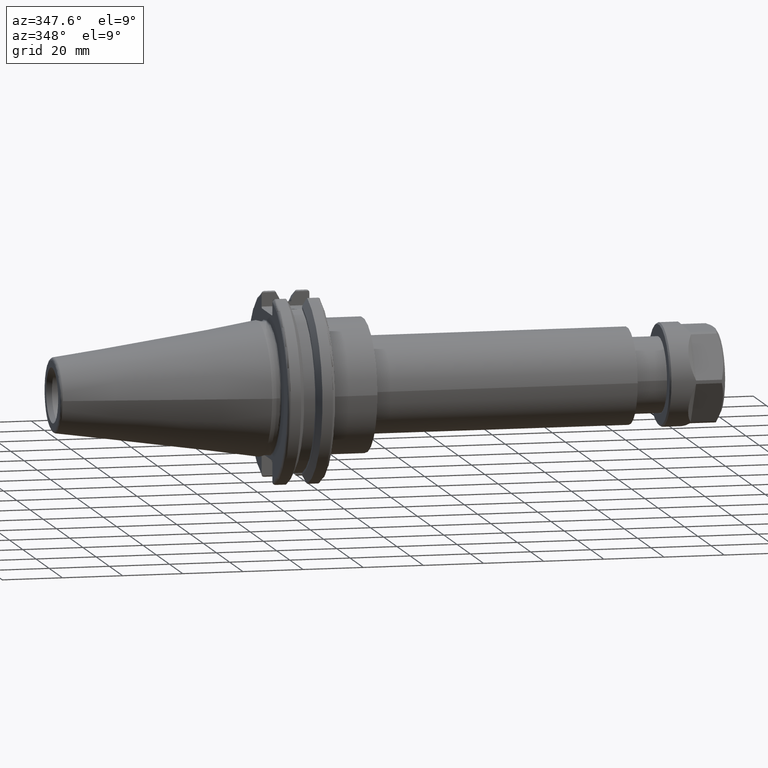
[diagram: clean part render]
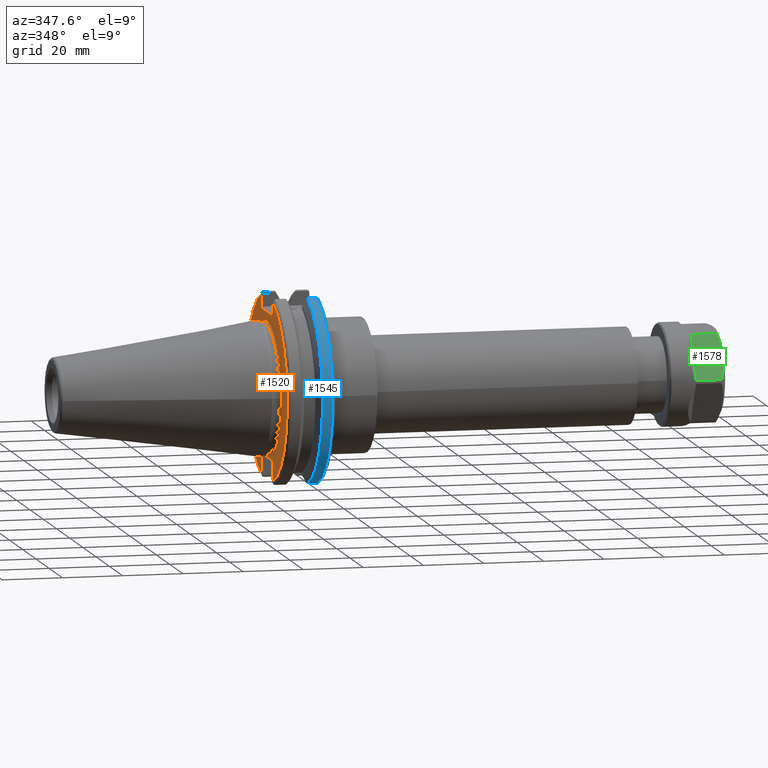
[diagram: same view with three faces highlighted in distinct colors, each labeled with its STEP entity id]
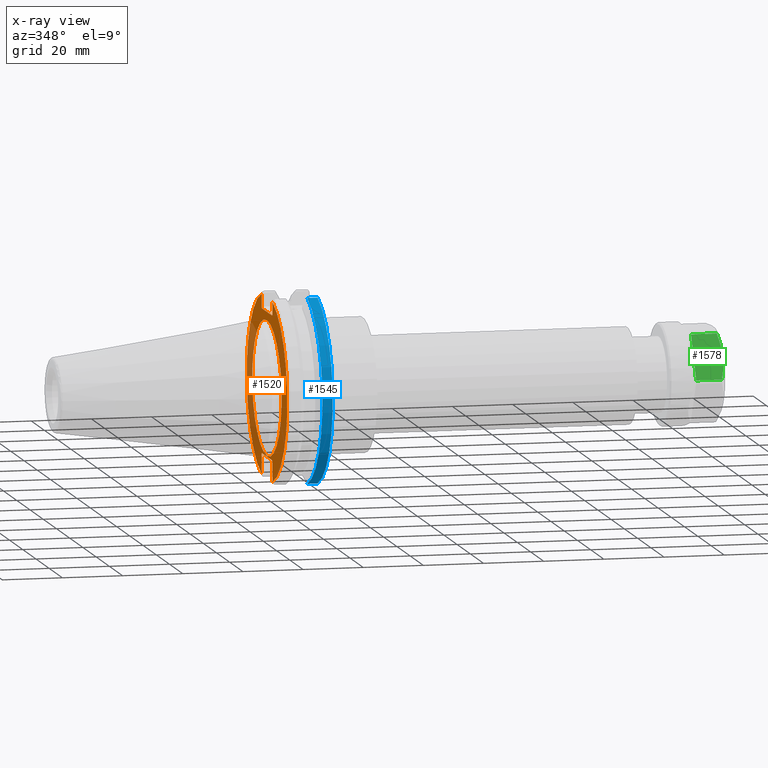
[diagram: x-ray of the same camera — body ghosted, the three highlighted faces saturated]
A machine part, auxiliary view with three faces highlighted in distinct colors.
The next image is the same camera in x-ray (body ghosted, the three faces saturated) — at least one of them is partly hidden behind the body in this view.
Their STEP definitions:

[orange] entity #1520 — the highlighted planar face has unit normal (-1, 0, 0).
#118=FACE_BOUND('',#304,.T.);
#134=PLANE('',#1706);
#207=FACE_OUTER_BOUND('',#303,.T.);
#303=EDGE_LOOP('',(#1091,#1092,#1093,#1094,#1095,#1096,#1097,#1098,#1099,
#1100,#1101,#1102));
#304=EDGE_LOOP('',(#1103));
#402=LINE('',#2381,#502);
#403=LINE('',#2383,#503);
#404=LINE('',#2385,#504);
#405=LINE('',#2387,#505);
#406=LINE('',#2389,#506);
#407=LINE('',#2393,#507);
#408=LINE('',#2395,#508);
#409=LINE('',#2397,#509);
#410=LINE('',#2399,#510);
#411=LINE('',#2400,#511);
#502=VECTOR('',#1935,10.);
#503=VECTOR('',#1936,10.);
#504=VECTOR('',#1937,10.);
#505=VECTOR('',#1938,10.);
#506=VECTOR('',#1939,10.);
#507=VECTOR('',#1942,10.);
#508=VECTOR('',#1943,10.);
#509=VECTOR('',#1944,10.);
#510=VECTOR('',#1945,10.);
#511=VECTOR('',#1946,10.);
#610=CIRCLE('',#1704,22.3);
#612=CIRCLE('',#1707,30.75);
#613=CIRCLE('',#1708,30.75);
#687=VERTEX_POINT('',#2372);
#688=VERTEX_POINT('',#2377);
#689=VERTEX_POINT('',#2378);
#690=VERTEX_POINT('',#2380);
#691=VERTEX_POINT('',#2382);
#692=VERTEX_POINT('',#2384);
#693=VERTEX_POINT('',#2386);
#694=VERTEX_POINT('',#2388);
#695=VERTEX_POINT('',#2390);
#696=VERTEX_POINT('',#2392);
#697=VERTEX_POINT('',#2394);
#698=VERTEX_POINT('',#2396);
#699=VERTEX_POINT('',#2398);
#843=EDGE_CURVE('',#687,#687,#610,.T.);
#845=EDGE_CURVE('',#688,#689,#612,.T.);
#846=EDGE_CURVE('',#688,#690,#402,.T.);
#847=EDGE_CURVE('',#691,#690,#403,.T.);
#848=EDGE_CURVE('',#691,#692,#404,.T.);
#849=EDGE_CURVE('',#693,#692,#405,.T.);
#850=EDGE_CURVE('',#693,#694,#406,.T.);
#851=EDGE_CURVE('',#695,#694,#613,.T.);
#852=EDGE_CURVE('',#695,#696,#407,.T.);
#853=EDGE_CURVE('',#697,#696,#408,.T.);
#854=EDGE_CURVE('',#697,#698,#409,.T.);
#855=EDGE_CURVE('',#699,#698,#410,.T.);
#856=EDGE_CURVE('',#699,#689,#411,.T.);
#1091=ORIENTED_EDGE('',*,*,#845,.F.);
#1092=ORIENTED_EDGE('',*,*,#846,.T.);
#1093=ORIENTED_EDGE('',*,*,#847,.F.);
#1094=ORIENTED_EDGE('',*,*,#848,.T.);
#1095=ORIENTED_EDGE('',*,*,#849,.F.);
#1096=ORIENTED_EDGE('',*,*,#850,.T.);
#1097=ORIENTED_EDGE('',*,*,#851,.F.);
#1098=ORIENTED_EDGE('',*,*,#852,.T.);
#1099=ORIENTED_EDGE('',*,*,#853,.F.);
#1100=ORIENTED_EDGE('',*,*,#854,.T.);
#1101=ORIENTED_EDGE('',*,*,#855,.F.);
#1102=ORIENTED_EDGE('',*,*,#856,.T.);
#1103=ORIENTED_EDGE('',*,*,#843,.F.);
#1520=ADVANCED_FACE('',(#207,#118),#134,.T.);
#1704=AXIS2_PLACEMENT_3D('',#2374,#1927,#1928);
#1706=AXIS2_PLACEMENT_3D('',#2376,#1931,#1932);
#1707=AXIS2_PLACEMENT_3D('',#2379,#1933,#1934);
#1708=AXIS2_PLACEMENT_3D('',#2391,#1940,#1941);
#1927=DIRECTION('center_axis',(-1.,0.,0.));
#1928=DIRECTION('ref_axis',(0.,-1.,1.83697019872103E-16));
#1931=DIRECTION('center_axis',(-1.,0.,0.));
#1932=DIRECTION('ref_axis',(0.,0.,1.));
#1933=DIRECTION('center_axis',(1.,0.,0.));
#1934=DIRECTION('ref_axis',(0.,-1.,1.60812264967664E-16));
#1935=DIRECTION('',(0.,0.,-1.));
#1936=DIRECTION('',(0.,-0.70710678118655,0.707106781186545));
#1937=DIRECTION('',(0.,1.,0.));
#1938=DIRECTION('',(0.,-0.707106781186549,-0.707106781186546));
#1939=DIRECTION('',(0.,0.,1.));
#1940=DIRECTION('center_axis',(1.,0.,0.));
#1941=DIRECTION('ref_axis',(0.,1.,1.60812264967664E-16));
#1942=DIRECTION('',(0.,0.,1.));
#1943=DIRECTION('',(0.,0.707106781186549,-0.707106781186546));
#1944=DIRECTION('',(0.,-1.,0.));
#1945=DIRECTION('',(0.,0.707106781186549,0.707106781186546));
#1946=DIRECTION('',(0.,0.,-1.));
#2372=CARTESIAN_POINT('',(3.175,-2.7309623620986E-15,22.3));
#2374=CARTESIAN_POINT('Origin',(3.175,0.,0.));
#2376=CARTESIAN_POINT('Origin',(3.175,31.75,0.));
#2377=CARTESIAN_POINT('',(3.175,-8.18999999999999,29.6392712461019));
#2378=CARTESIAN_POINT('',(3.175,-8.19,-29.6392712461019));
#2379=CARTESIAN_POINT('Origin',(3.175,0.,0.));
#2380=CARTESIAN_POINT('',(3.175,-8.18999999999999,25.5));
#2381=CARTESIAN_POINT('',(3.175,-8.18999999999999,12.5));
#2382=CARTESIAN_POINT('',(3.175,-7.68999999999999,25.));
#2383=CARTESIAN_POINT('',(3.175,8.29500000000007,9.01500000000004));
#2384=CARTESIAN_POINT('',(3.175,7.69,25.));
#2385=CARTESIAN_POINT('',(3.175,15.875,25.));
#2386=CARTESIAN_POINT('',(3.175,8.19,25.5));
#2387=CARTESIAN_POINT('',(3.175,7.58000000000002,24.89));
#2388=CARTESIAN_POINT('',(3.175,8.19,29.6392712461019));
#2389=CARTESIAN_POINT('',(3.175,8.19,12.5));
#2390=CARTESIAN_POINT('',(3.175,8.18999999999999,-29.6392712461019));
#2391=CARTESIAN_POINT('Origin',(3.175,0.,0.));
#2392=CARTESIAN_POINT('',(3.175,8.18999999999999,-23.1));
#2393=CARTESIAN_POINT('',(3.175,8.18999999999999,-11.3));
#2394=CARTESIAN_POINT('',(3.175,7.69,-22.6));
#2395=CARTESIAN_POINT('',(3.175,8.18000000000002,-23.09));
#2396=CARTESIAN_POINT('',(3.175,-7.69,-22.6));
#2397=CARTESIAN_POINT('',(3.175,15.875,-22.6));
#2398=CARTESIAN_POINT('',(3.175,-8.19,-23.1));
#2399=CARTESIAN_POINT('',(3.175,7.69500000000004,-7.21500000000002));
#2400=CARTESIAN_POINT('',(3.175,-8.19,-11.3));

[blue] entity #1545 — the highlighted cylindrical surface (partial cylindrical patch) has radius 31.75 mm, axis along (1, 0, 0).
#232=FACE_OUTER_BOUND('',#331,.T.);
#331=EDGE_LOOP('',(#1250,#1251,#1252,#1253));
#456=LINE('',#2694,#556);
#457=LINE('',#2700,#557);
#556=VECTOR('',#2067,10.);
#557=VECTOR('',#2070,10.);
#618=CIRCLE('',#1719,31.75);
#628=CIRCLE('',#1748,31.75);
#727=VERTEX_POINT('',#2511);
#728=VERTEX_POINT('',#2520);
#762=VERTEX_POINT('',#2693);
#763=VERTEX_POINT('',#2699);
#890=EDGE_CURVE('',#727,#728,#618,.T.);
#943=EDGE_CURVE('',#728,#762,#456,.T.);
#945=EDGE_CURVE('',#763,#727,#457,.T.);
#946=EDGE_CURVE('',#763,#762,#628,.T.);
#1250=ORIENTED_EDGE('',*,*,#890,.F.);
#1251=ORIENTED_EDGE('',*,*,#945,.F.);
#1252=ORIENTED_EDGE('',*,*,#946,.T.);
#1253=ORIENTED_EDGE('',*,*,#943,.F.);
#1492=CYLINDRICAL_SURFACE('',#1747,31.75);
#1545=ADVANCED_FACE('',(#232),#1492,.T.);
#1719=AXIS2_PLACEMENT_3D('',#2521,#1985,#1986);
#1747=AXIS2_PLACEMENT_3D('',#2698,#2068,#2069);
#1748=AXIS2_PLACEMENT_3D('',#2701,#2071,#2072);
#1985=DIRECTION('center_axis',(1.,0.,0.));
#1986=DIRECTION('ref_axis',(0.,-1.,1.60812264967664E-16));
#2067=DIRECTION('',(-1.,0.,0.));
#2068=DIRECTION('center_axis',(1.,0.,0.));
#2069=DIRECTION('ref_axis',(0.,-1.,1.22464679914735E-16));
#2070=DIRECTION('',(1.,0.,0.));
#2071=DIRECTION('center_axis',(1.,0.,0.));
#2072=DIRECTION('ref_axis',(0.,0.,-1.));
#2511=CARTESIAN_POINT('',(18.05,-8.67204822802685,30.5427254764662));
#2520=CARTESIAN_POINT('',(18.05,-8.67204822802685,-30.5427254764662));
#2521=CARTESIAN_POINT('Origin',(18.05,0.,0.));
#2693=CARTESIAN_POINT('',(14.6531667690756,-8.67204822802685,-30.5427254764662));
#2694=CARTESIAN_POINT('',(16.8515833845378,-8.67204822802685,-30.5427254764662));
#2698=CARTESIAN_POINT('Origin',(16.8515833845378,0.,0.));
#2699=CARTESIAN_POINT('',(14.6531667690756,-8.67204822802685,30.5427254764662));
#2700=CARTESIAN_POINT('',(16.8515833845378,-8.67204822802685,30.5427254764662));
#2701=CARTESIAN_POINT('Origin',(14.6531667690756,0.,0.));

[green] entity #1578 — the highlighted planar face has unit normal (0, 0.8721, -0.4893).
#86=(
BOUNDED_CURVE()
B_SPLINE_CURVE(2,(#2834,#2835,#2836),.UNSPECIFIED.,.F.,.F.)
B_SPLINE_CURVE_WITH_KNOTS((3,3),(1.89977904823324,4.47851568551576),
 .UNSPECIFIED.)
CURVE()
GEOMETRIC_REPRESENTATION_ITEM()
RATIONAL_B_SPLINE_CURVE((1.51788044142269,1.72026450027904,1.51788044142269))
REPRESENTATION_ITEM('')
);
#167=PLANE('',#1813);
#265=FACE_OUTER_BOUND('',#367,.T.);
#367=EDGE_LOOP('',(#1418,#1419,#1420,#1421));
#466=LINE('',#2776,#566);
#478=LINE('',#2822,#578);
#483=LINE('',#2859,#583);
#566=VECTOR('',#2169,8.567949192431);
#578=VECTOR('',#2205,8.567949192431);
#583=VECTOR('',#2228,16.);
#774=VERTEX_POINT('',#2772);
#775=VERTEX_POINT('',#2773);
#776=VERTEX_POINT('',#2775);
#798=VERTEX_POINT('',#2820);
#976=EDGE_CURVE('',#774,#776,#466,.T.);
#1000=EDGE_CURVE('',#775,#798,#478,.T.);
#1004=EDGE_CURVE('',#798,#776,#86,.T.);
#1013=EDGE_CURVE('',#775,#774,#483,.T.);
#1418=ORIENTED_EDGE('',*,*,#1013,.F.);
#1419=ORIENTED_EDGE('',*,*,#1000,.T.);
#1420=ORIENTED_EDGE('',*,*,#1004,.T.);
#1421=ORIENTED_EDGE('',*,*,#976,.F.);
#1578=ADVANCED_FACE('',(#265),#167,.F.);
#1813=AXIS2_PLACEMENT_3D('',#2858,#2226,#2227);
#2169=DIRECTION('',(1.,0.,0.));
#2205=DIRECTION('',(1.,0.,0.));
#2226=DIRECTION('center_axis',(0.,0.,1.));
#2227=DIRECTION('ref_axis',(0.,-1.,0.));
#2228=DIRECTION('',(0.,-1.,0.));
#2772=CARTESIAN_POINT('',(-0.8,-8.,-15.));
#2773=CARTESIAN_POINT('',(-0.8,8.,-15.));
#2775=CARTESIAN_POINT('',(7.767949192431,-8.,-15.));
#2776=CARTESIAN_POINT('',(-0.8,-8.,-15.));
#2820=CARTESIAN_POINT('',(7.767949192431,8.,-15.));
#2822=CARTESIAN_POINT('',(-0.8,8.,-15.));
#2834=CARTESIAN_POINT('Ctrl Pts',(7.76794919242979,7.99999999999999,-15.));
#2835=CARTESIAN_POINT('Ctrl Pts',(9.94150314702602,8.88178419700125E-15,
-15.));
#2836=CARTESIAN_POINT('Ctrl Pts',(7.7679491924298,-7.99999999999997,-15.));
#2858=CARTESIAN_POINT('Origin',(9.5,10.,-15.));
#2859=CARTESIAN_POINT('',(-0.8,8.,-15.));